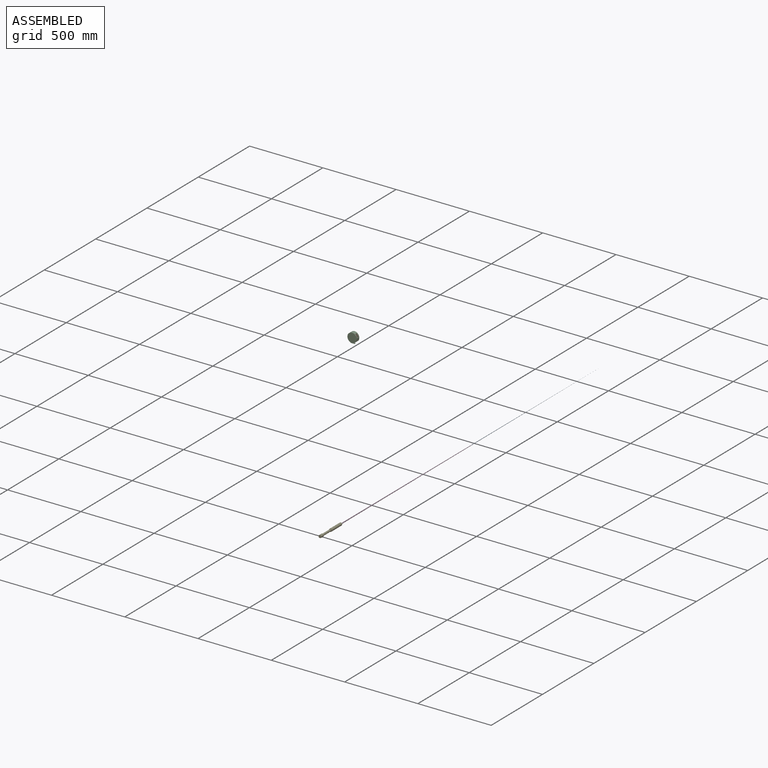
[diagram: assembled view]
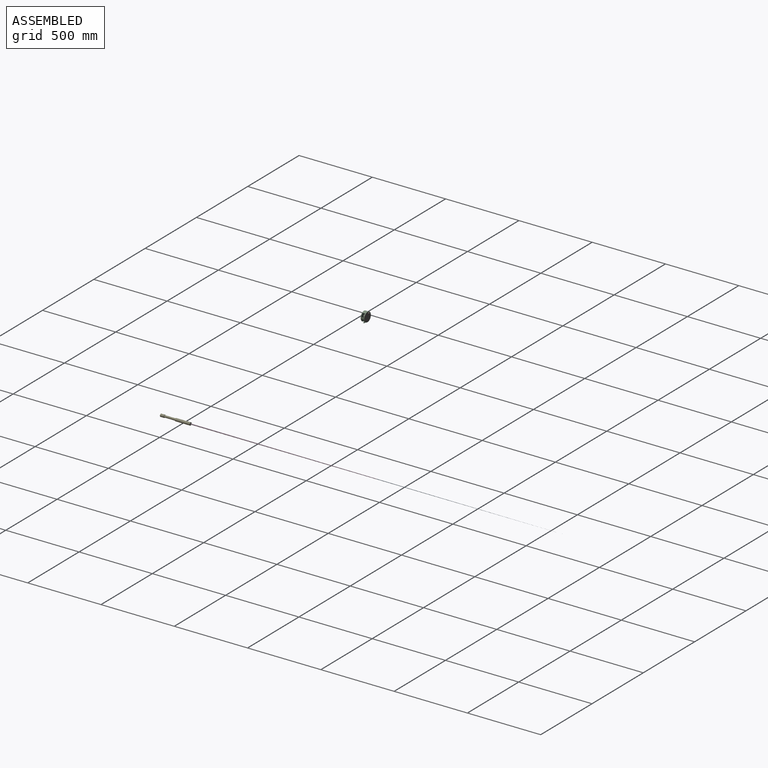
[diagram: assembled view, second angle]
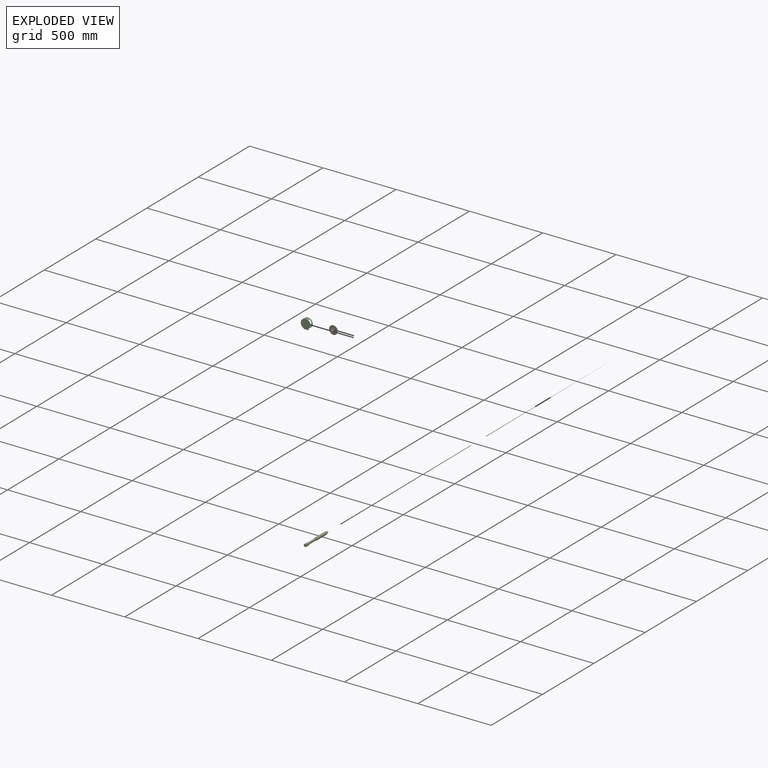
[diagram: exploded view]
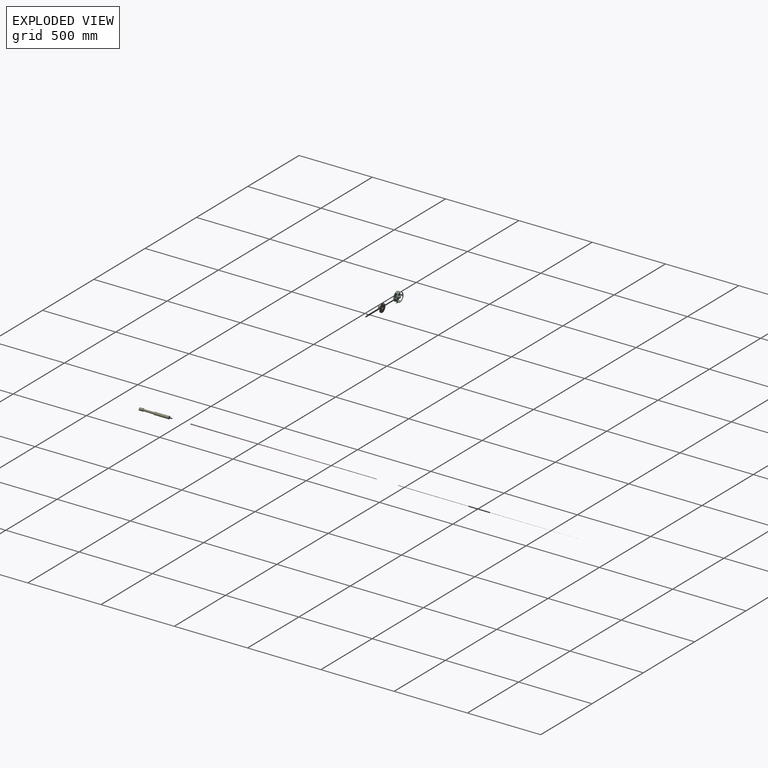
[diagram: exploded view, second angle]
ASSEMBLY  parts=5 mates=3
PART A: 3 faces, bbox 3.2x1270x3.2 mm
  f0: plane 0.01x0.01mm, normal (0,1,0), area 0mm2, adj f2
  f1: plane 3.18x3.18mm, normal (0,-1,0), area 7.9mm2, adj f2
  f2: cone r=0.01mm half-angle=0.1deg, axis (0,-1,0), area 6361.5mm2, adj f0,f1
PART B: 8 faces, bbox 58.4x33x58.4 mm
  f0: cylinder r=29.21mm len=58.42mm, axis (0,1,0), area 279.7mm2, adj f1,f2
  f1: plane 58.42x58.42mm, normal (0,-1,0), area 2457.8mm2, adj f0,f5
  f2: plane 58.42x58.42mm, normal (0,1,0), area 2517.6mm2, adj f0,f3,f6
  f3: cylinder r=3.4mm len=8.38mm, axis (0,-1,0), area 178.8mm2, adj f2,f4
  f4: plane 6.79x6.79mm, normal (0,1,0), area 36.2mm2, adj f3
  f5: cylinder r=8.42mm len=23.11mm, axis (0,1,0), area 1222.7mm2, adj f1,f7
  f6: cylinder r=6.35mm len=24.64mm, axis (0,1,0), area 983mm2, adj f2,f7
  f7: plane 16.84x16.84mm, normal (0,-1,0), area 96mm2, adj f5,f6
PART C: 33 faces, bbox 25.4x63.5x67.8 mm
  f0: cylinder r=31.75mm len=63.5mm, axis (-1,0,0), area 3271.7mm2, adj f2,f3,f5,f6,f7,f8,f9,f10
  f1: cylinder r=29.21mm len=58.42mm, axis (-1,0,0), area 2337.3mm2, adj f2,f4,f5,f6,f7,f8,f9,f10
  f2: plane 63.5x63.5mm, normal (1,0,0), area 486.4mm2, adj f0,f1
  f3: plane 63.5x63.5mm, normal (-1,0,0), area 3166.9mm2, adj f0
  f4: plane 58.42x58.42mm, normal (1,0,0), area 2553.8mm2, adj f1,f31
  f5: plane 22.36x21.82mm, normal (1,0,0), area 74.1mm2, adj f0,f1,f6,f8
  f6: plane 15.5x2.59mm, normal (0,0,-1), area 40.2mm2, adj f0,f1,f5,f7
  f7: plane 22.36x21.82mm, normal (-1,0,0), area 74.1mm2, adj f0,f1,f6,f8
  f8: plane 15.5x6.44mm, normal (0,0,1), area 99.8mm2, adj f0,f1,f5,f7
  f9: plane 15.5x6.44mm, normal (0,0,1), area 99.8mm2, adj f0,f1,f10,f12
  f10: plane 22.36x21.82mm, normal (-1,0,0), area 74.1mm2, adj f0,f1,f9,f11
  f11: plane 15.5x2.59mm, normal (0,0,-1), area 40.2mm2, adj f0,f1,f10,f12
  f12: plane 22.36x21.82mm, normal (1,0,0), area 74.1mm2, adj f0,f1,f9,f11
  f13: plane 22.01x19.17mm, normal (1,0,0), area 70.3mm2, adj f0,f1,f14,f16
  f14: plane 15.7x5.21mm, normal (0,0,-1), area 81.7mm2, adj f0,f1,f13,f15
  f15: plane 22.01x19.17mm, normal (-1,0,0), area 70.3mm2, adj f0,f1,f14,f16
  f16: plane 15.7x2.57mm, normal (0,0,1), area 40.3mm2, adj f0,f1,f13,f15
  f17: plane 15.7x2.57mm, normal (0,0,1), area 40.3mm2, adj f0,f1,f18,f20
  f18: plane 22.01x19.17mm, normal (-1,0,0), area 70.3mm2, adj f0,f1,f17,f19
  f19: plane 15.7x5.21mm, normal (0,0,-1), area 81.7mm2, adj f0,f1,f18,f20
  f20: plane 22.01x19.17mm, normal (1,0,0), area 70.3mm2, adj f0,f1,f17,f19
  f21: plane 5.06x3.64mm, normal (0,1,0), area 18.4mm2, adj f0,f23,f24,f25
  f22: plane 4.98x3.64mm, normal (0,-1,0), area 18.1mm2, adj f0,f23,f24,f25
  f23: plane 23.35x5.06mm, normal (-1,0,0), area 82.3mm2, adj f0,f21,f22,f25
  f24: plane 23.35x5.06mm, normal (1,0,0), area 82.3mm2, adj f0,f21,f22,f25
  f25: plane 30.43x8.81mm, normal (0,0,1), area 183mm2, adj f21,f22,f23,f24,f26,f27,f28,f29
  f26: plane 30.43x1.52mm, normal (-1,0,0), area 46.4mm2, adj f25,f27,f29,f30
  f27: plane 8.81x1.52mm, normal (0,1,0), area 13.4mm2, adj f25,f26,f28,f30
  f28: plane 30.43x1.52mm, normal (1,0,0), area 46.4mm2, adj f25,f27,f29,f30
  f29: plane 8.81x1.52mm, normal (0,-1,0), area 13.4mm2, adj f25,f26,f28,f30
  f30: plane 30.43x8.81mm, normal (0,0,-1), area 268mm2, adj f26,f27,f28,f29
  f31: cylinder r=6.35mm len=22.86mm, axis (-1,0,0), area 912.1mm2, adj f4,f32
  f32: plane 12.7x12.7mm, normal (1,0,0), area 126.7mm2, adj f31
PART D: 3 faces, bbox 6.4x1270x6.4 mm
  f0: plane 6.35x6.35mm, normal (0,-1,0), area 31.7mm2, adj f2
  f1: plane 3.18x3.18mm, normal (0,1,0), area 7.9mm2, adj f2
  f2: cone r=3.17mm half-angle=0.1deg, axis (0,-1,0), area 19001.5mm2, adj f0,f1
PART E: 7 faces, bbox 19.1x203.2x19.1 mm
  f0: cylinder r=6.83mm len=76.2mm, axis (0,1,0), area 3269.1mm2, adj f2,f6
  f1: cylinder r=9.53mm len=101.6mm, axis (0,1,0), area 6080.5mm2, adj f2,f3
  f2: plane 19.05x19.05mm, normal (0,-1,0), area 138.6mm2, adj f0,f1
  f3: plane 19.05x19.05mm, normal (0,1,0), area 285mm2, adj f1
  f4: cylinder r=9.53mm len=25.4mm, axis (0,1,0), area 1520.1mm2, adj f5,f6
  f5: plane 19.05x19.05mm, normal (0,-1,0), area 285mm2, adj f4
  f6: plane 19.05x19.05mm, normal (0,1,0), area 138.6mm2, adj f0,f4
PLACE A t=(-150.51,10.94,-7.72)mm
PLACE B t=(-654.32,-1039.41,688.47)mm
PLACE C rot(axis=(0,0,1),90deg) t=(-654.32,-1064.81,688.47)mm
PLACE D t=(-150.51,-1259.06,-7.72)mm
PLACE E t=(-150.51,-1894.06,-7.72)mm
MATE fastened D.f2 <-> E.f0  axis (0,-1,0) through (-150.51,-1894.06,-7.72)mm
MATE fastened D.f2 <-> A.f2  axis (0,1,0) through (-150.51,-624.06,-7.72)mm
MATE revolute B.f0 <-> C.f0  axis (0,1,0) through (-654.32,-1039.41,688.47)mm
